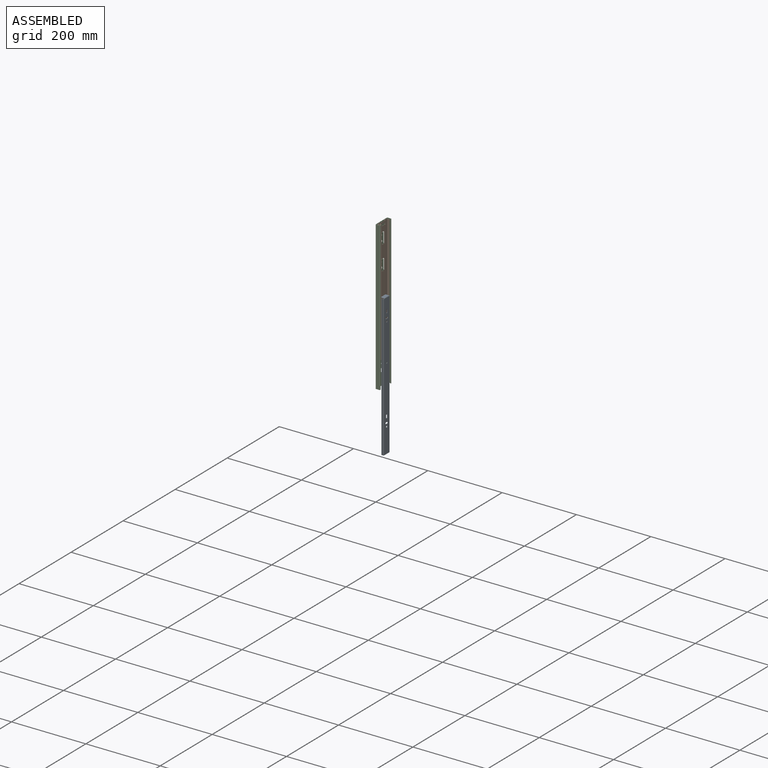
[diagram: assembled view]
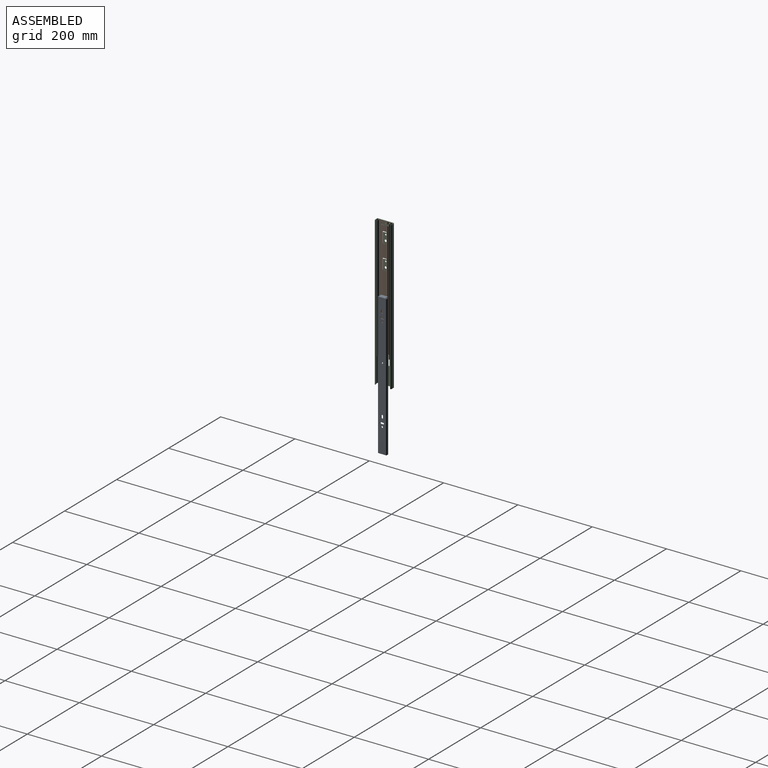
[diagram: assembled view, second angle]
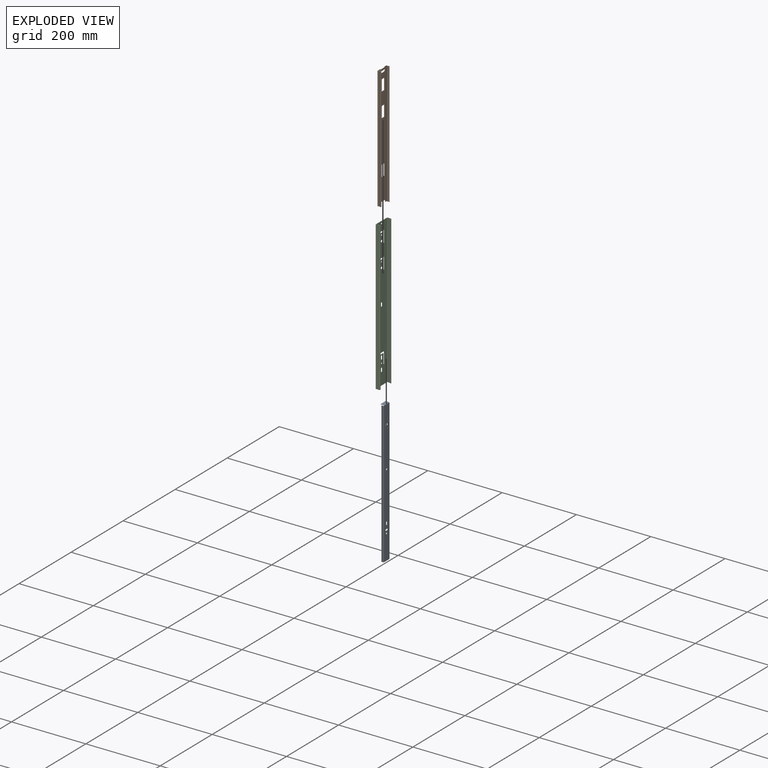
[diagram: exploded view]
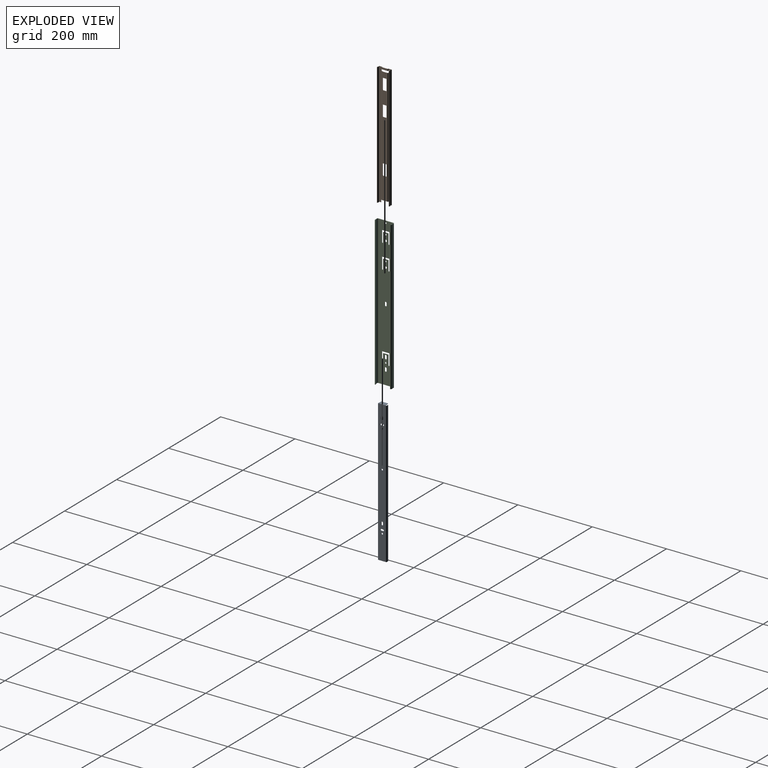
[diagram: exploded view, second angle]
ASSEMBLY  parts=3 mates=2
PART A: 69 faces, bbox 10.2x24x382.2 mm
  f0: plane 6x3mm, normal (0,0,1), area 7.1mm2, adj f3,f4,f5,f6,f7,f8,f9,f21
  f1: cylinder r=3mm len=380mm, axis (0,0,1), area 1237.2mm2, adj f2,f12,f13,f14
  f2: cylinder r=2mm len=380mm, axis (0,0,1), area 1552.5mm2, adj f1,f3,f13,f14
  f3: plane 380x20mm, normal (1,0,0), area 7362.6mm2, adj f0,f2,f4,f13,f14,f17,f50,f51
  f4: cylinder r=2mm len=380mm, axis (0,0,1), area 1552.5mm2, adj f0,f3,f5,f13
  f5: cylinder r=3mm len=380mm, axis (0,0,1), area 1237.2mm2, adj f0,f4,f6,f13
  f6: plane 380x1.16mm, normal (-1,0,0), area 438.8mm2, adj f0,f5,f7,f13
  f7: cylinder r=4mm len=380mm, axis (0,0,1), area 1395.9mm2, adj f0,f6,f8,f13
  f8: cylinder r=1mm len=380mm, axis (0,0,1), area 776.3mm2, adj f0,f7,f9,f13
  f9: plane 380x20mm, normal (-1,0,0), area 7432mm2, adj f0,f8,f10,f13,f14,f18,f31,f32
  f10: cylinder r=1mm len=380mm, axis (0,0,1), area 776.3mm2, adj f9,f11,f13,f14
  f11: cylinder r=4mm len=380mm, axis (0,0,1), area 1395.9mm2, adj f10,f12,f13,f14
  f12: plane 380x1.16mm, normal (-1,0,0), area 438.8mm2, adj f1,f11,f13,f14
  f13: plane 24x6mm, normal (0,0,-1), area 33mm2, adj f1,f2,f3,f4,f5,f6,f7,f8
  f14: plane 6x3mm, normal (0,0,1), area 7.1mm2, adj f1,f2,f3,f9,f10,f11,f12,f20
  f15: plane 17x0.5mm, normal (-1,0,0), area 8.5mm2, adj f19,f22,f23,f27
  f16: plane 18x7.5mm, normal (0,0,1), area 134.9mm2, adj f17,f25,f26,f27,f28,f29
  f17: cylinder r=2mm len=18mm, axis (0,-1,0), area 56.5mm2, adj f3,f16,f24,f30
  f18: cylinder r=1mm len=19mm, axis (0,-1,0), area 29.8mm2, adj f9,f19,f20,f21
  f19: plane 19x8mm, normal (0,0,-1), area 151.6mm2, adj f15,f18,f20,f21,f22,f23
  f20: plane 8.5x1.5mm, normal (0,1,0), area 4.5mm2, adj f14,f18,f19,f23,f29,f30
  f21: plane 8.5x1.5mm, normal (0,-1,0), area 4.5mm2, adj f0,f18,f19,f22,f24,f25
  f22: cylinder r=1mm len=1mm, axis (0,0,1), area 0.8mm2, adj f15,f19,f21,f26
  f23: cylinder r=1mm len=1mm, axis (0,0,-1), area 0.8mm2, adj f15,f19,f20,f28
  f24: torus R=1.5mm, axis (0,1,0), area 2.2mm2, adj f0,f17,f21,f25
  f25: cylinder r=0.5mm len=7mm, axis (1,0,0), area 5.5mm2, adj f16,f21,f24,f26
  f26: torus R=0.5mm, axis (0,0,-1), area 1mm2, adj f16,f22,f25,f27
  f27: cylinder r=0.5mm len=17mm, axis (0,-1,0), area 13.4mm2, adj f15,f16,f26,f28
  f28: torus R=0.5mm, axis (0,0,-1), area 1mm2, adj f16,f23,f27,f29
  f29: cylinder r=0.5mm len=7mm, axis (-1,0,0), area 5.5mm2, adj f16,f20,f28,f30
  f30: torus R=1.5mm, axis (0,1,0), area 2.2mm2, adj f14,f17,f20,f29
  f31: cylinder r=2mm len=4mm, axis (1,0,0), area 6.3mm2, adj f9,f67
  f32: cylinder r=2mm len=4mm, axis (1,0,0), area 3.1mm2, adj f9,f33,f35,f57
  f33: plane 5x0.5mm, normal (0,-1,0), area 2.5mm2, adj f9,f32,f34,f55
  f34: cylinder r=2mm len=4mm, axis (1,0,0), area 3.1mm2, adj f9,f33,f35,f54
  f35: plane 5x0.5mm, normal (0,1,0), area 2.5mm2, adj f9,f32,f34,f56
  f36: cylinder r=2mm len=4mm, axis (1,0,0), area 3.1mm2, adj f9,f37,f39,f51
  f37: plane 5x0.5mm, normal (0,0,1), area 2.5mm2, adj f9,f36,f38,f50
  f38: cylinder r=2mm len=4mm, axis (1,0,0), area 3.1mm2, adj f9,f37,f39,f52
  f39: plane 5x0.5mm, normal (0,0,-1), area 2.5mm2, adj f9,f36,f38,f53
  f40: cylinder r=2mm len=4mm, axis (1,0,0), area 6.3mm2, adj f9,f68
  f41: cylinder r=2mm len=4mm, axis (1,0,0), area 3.1mm2, adj f9,f42,f44,f61
  f42: plane 5x0.5mm, normal (0,-1,0), area 2.5mm2, adj f9,f41,f43,f59
  f43: cylinder r=2mm len=4mm, axis (1,0,0), area 3.1mm2, adj f9,f42,f44,f58
  f44: plane 5x0.5mm, normal (0,1,0), area 2.5mm2, adj f9,f41,f43,f60
  f45: cylinder r=2mm len=4mm, axis (1,0,0), area 3.1mm2, adj f9,f46,f48,f63
  f46: plane 5x0.5mm, normal (0,0,1), area 2.5mm2, adj f9,f45,f47,f62
  f47: cylinder r=2mm len=4mm, axis (1,0,0), area 3.1mm2, adj f9,f46,f48,f64
  f48: plane 5x0.5mm, normal (0,0,-1), area 2.5mm2, adj f9,f45,f47,f65
  f49: cylinder r=2mm len=4mm, axis (1,0,0), area 6.3mm2, adj f9,f66
  f50: cylinder r=0.5mm len=5mm, axis (0,-1,0), area 3.9mm2, adj f3,f37,f51,f52
  f51: torus R=2.5mm, axis (1,0,0), area 5.4mm2, adj f3,f36,f50,f53
  f52: torus R=2.5mm, axis (1,0,0), area 5.4mm2, adj f3,f38,f50,f53
  f53: cylinder r=0.5mm len=5mm, axis (0,1,0), area 3.9mm2, adj f3,f39,f51,f52
  f54: torus R=2.5mm, axis (1,0,0), area 5.4mm2, adj f3,f34,f55,f56
  f55: cylinder r=0.5mm len=5mm, axis (0,0,-1), area 3.9mm2, adj f3,f33,f54,f57
  f56: cylinder r=0.5mm len=5mm, axis (0,0,1), area 3.9mm2, adj f3,f35,f54,f57
  f57: torus R=2.5mm, axis (1,0,0), area 5.4mm2, adj f3,f32,f55,f56
  f58: torus R=2.5mm, axis (1,0,0), area 5.4mm2, adj f3,f43,f59,f60
  f59: cylinder r=0.5mm len=5mm, axis (0,0,-1), area 3.9mm2, adj f3,f42,f58,f61
  f60: cylinder r=0.5mm len=5mm, axis (0,0,1), area 3.9mm2, adj f3,f44,f58,f61
  f61: torus R=2.5mm, axis (1,0,0), area 5.4mm2, adj f3,f41,f59,f60
  f62: cylinder r=0.5mm len=5mm, axis (0,-1,0), area 3.9mm2, adj f3,f46,f63,f64
  f63: torus R=2.5mm, axis (1,0,0), area 5.4mm2, adj f3,f45,f62,f65
  f64: torus R=2.5mm, axis (1,0,0), area 5.4mm2, adj f3,f47,f62,f65
  f65: cylinder r=0.5mm len=5mm, axis (0,1,0), area 3.9mm2, adj f3,f48,f63,f64
  f66: torus R=2.5mm, axis (1,0,0), area 10.8mm2, adj f3,f49
  f67: torus R=2.5mm, axis (1,0,0), area 10.8mm2, adj f3,f31
  f68: torus R=2.5mm, axis (1,0,0), area 10.8mm2, adj f3,f40
PART B: 176 faces, bbox 9.2x35.3x330 mm
  f0: plane 5x0.7mm, normal (0,1,0), area 3.5mm2, adj f1,f14,f46,f79
  f1: cylinder r=1.3mm len=5mm, axis (0,0,1), area 10.2mm2, adj f0,f2,f46,f79
  f2: plane 15x5mm, normal (1,0,0), area 75mm2, adj f1,f3,f46,f79
  f3: cylinder r=1.3mm len=5mm, axis (0,0,1), area 10.2mm2, adj f2,f4,f46,f79
  f4: plane 5x0.7mm, normal (0,-1,0), area 3.5mm2, adj f3,f20,f46,f79
  f5: cylinder r=0.5mm len=4mm, axis (0,0,1), area 3.1mm2, adj f6,f29,f137,f152
  f6: plane 4x1mm, normal (0,1,0), area 4mm2, adj f5,f7,f136,f150
  f7: cylinder r=0.5mm len=4mm, axis (0,0,1), area 3.1mm2, adj f6,f8,f135,f148
  f8: plane 15x4mm, normal (-1,0,0), area 60mm2, adj f7,f9,f134,f146
  f9: cylinder r=0.5mm len=4mm, axis (0,0,1), area 3.1mm2, adj f8,f10,f133,f144
  f10: plane 4x1mm, normal (0,-1,0), area 4mm2, adj f9,f11,f132,f145
  f11: cylinder r=0.5mm len=4mm, axis (0,0,1), area 3.1mm2, adj f10,f37,f131,f147
  f12: plane 8.01x6mm, normal (0,0,-1), area 4.6mm2, adj f20,f21,f22,f23,f66,f103,f105,f107
  f13: cylinder r=3.8mm len=330mm, axis (0,0,1), area 1971.6mm2, adj f14,f44,f45,f46
  f14: plane 330x7.66mm, normal (1,0,0), area 2509.1mm2, adj f0,f13,f15,f45,f46,f64,f65,f67
  f15: plane 313x0.7mm, normal (0,1,0), area 219.1mm2, adj f14,f16,f64,f83
  f16: cylinder r=1.3mm len=313mm, axis (0,0,1), area 639.2mm2, adj f15,f17,f64,f83
  f17: plane 313x15mm, normal (1,0,0), area 3797.6mm2, adj f16,f18,f47,f48,f49,f50,f51,f52
  f18: cylinder r=1.3mm len=313mm, axis (0,0,1), area 639.2mm2, adj f17,f19,f64,f83
  f19: plane 313x0.7mm, normal (0,-1,0), area 219.1mm2, adj f18,f20,f64,f83
  f20: plane 330x7.66mm, normal (1,0,0), area 2509.1mm2, adj f4,f12,f19,f21,f46,f63,f64,f66
  f21: cylinder r=3.8mm len=330mm, axis (0,0,1), area 1971.6mm2, adj f12,f20,f22,f46
  f22: cylinder r=1.2mm len=330mm, axis (0,0,1), area 965.6mm2, adj f12,f21,f23,f46
  f23: plane 330x0.8mm, normal (-0.1,0.99,0), area 263.9mm2, adj f12,f22,f24,f46,f108,f143
  f24: cylinder r=2mm len=329mm, axis (0,0,1), area 1604.5mm2, adj f23,f25,f108,f143
  f25: cylinder r=3mm len=329mm, axis (0,0,1), area 1673.2mm2, adj f24,f26,f107,f142
  f26: cylinder r=0.5mm len=329mm, axis (0,0,1), area 152.6mm2, adj f25,f27,f106,f141
  f27: plane 329x0.24mm, normal (0,-1,0), area 78.2mm2, adj f26,f28,f105,f140
  f28: cylinder r=0.5mm len=329mm, axis (0,0,1), area 258.4mm2, adj f27,f29,f104,f139
  f29: plane 329x8.5mm, normal (-1,0,0), area 2765.8mm2, adj f5,f28,f30,f100,f101,f102,f103,f138
  f30: cylinder r=0.5mm len=312mm, axis (0,0,1), area 245mm2, adj f29,f31,f99,f164
  f31: plane 312x1mm, normal (0,1,0), area 312mm2, adj f30,f32,f98,f166
  f32: cylinder r=0.5mm len=312mm, axis (0,0,1), area 245mm2, adj f31,f33,f97,f167
  f33: plane 312x15mm, normal (-1,0,0), area 3662.8mm2, adj f32,f34,f96,f109,f110,f111,f112,f113
  f34: cylinder r=0.5mm len=312mm, axis (0,0,1), area 245mm2, adj f33,f35,f95,f163
  f35: plane 312x1mm, normal (0,-1,0), area 312mm2, adj f34,f36,f94,f161
  f36: cylinder r=0.5mm len=312mm, axis (0,0,1), area 245mm2, adj f35,f37,f93,f159
  f37: plane 329x8.5mm, normal (-1,0,0), area 2765.8mm2, adj f11,f36,f38,f89,f90,f91,f92,f130
  f38: cylinder r=0.5mm len=329mm, axis (0,0,1), area 258.4mm2, adj f37,f39,f88,f129
  f39: plane 329x0.24mm, normal (0,1,0), area 78.2mm2, adj f38,f40,f87,f128
  f40: cylinder r=0.5mm len=329mm, axis (0,0,1), area 152.6mm2, adj f39,f41,f86,f127
  f41: cylinder r=3mm len=329mm, axis (0,0,1), area 1673.2mm2, adj f40,f42,f85,f126
  f42: cylinder r=2mm len=329mm, axis (0,0,1), area 1604.5mm2, adj f41,f43,f84,f125
  f43: plane 330x0.8mm, normal (-0.1,-0.99,0), area 263.9mm2, adj f42,f44,f45,f46,f84,f125
  f44: cylinder r=1.2mm len=330mm, axis (0,0,1), area 965.6mm2, adj f13,f43,f45,f46
  f45: plane 8.01x6mm, normal (0,0,-1), area 4.6mm2, adj f13,f14,f43,f44,f67,f84,f85,f87
  f46: plane 34x8.01mm, normal (0,0,1), area 16.6mm2, adj f0,f1,f2,f3,f4,f13,f14,f20
  f47: cylinder r=1mm len=1mm, axis (1,0,0), area 0.5mm2, adj f17,f48,f54,f124
  f48: plane 28x0.3mm, normal (0,1,0), area 8.4mm2, adj f17,f47,f49,f122
  f49: cylinder r=1mm len=1mm, axis (1,0,0), area 0.5mm2, adj f17,f48,f50,f120
  f50: plane 8x0.3mm, normal (0,0,-1), area 2.4mm2, adj f17,f49,f51,f118
  f51: cylinder r=1mm len=1mm, axis (1,0,0), area 0.5mm2, adj f17,f50,f52,f117
  f52: plane 28x0.3mm, normal (0,-1,0), area 8.4mm2, adj f17,f51,f53,f119
  f53: cylinder r=1mm len=1mm, axis (1,0,0), area 0.5mm2, adj f17,f52,f54,f121
  f54: plane 8x0.3mm, normal (0,0,1), area 2.4mm2, adj f17,f47,f53,f123
  f55: cylinder r=1mm len=1mm, axis (1,0,0), area 0.5mm2, adj f17,f56,f62,f171
  f56: plane 28x0.3mm, normal (0,1,0), area 8.4mm2, adj f17,f55,f57,f169
  f57: cylinder r=1mm len=1mm, axis (1,0,0), area 0.5mm2, adj f17,f56,f58,f168
  f58: plane 8x0.3mm, normal (0,0,-1), area 2.4mm2, adj f17,f57,f59,f170
  f59: cylinder r=1mm len=1mm, axis (1,0,0), area 0.5mm2, adj f17,f58,f60,f172
  f60: plane 28x0.3mm, normal (0,-1,0), area 8.4mm2, adj f17,f59,f61,f174
  f61: cylinder r=1mm len=1mm, axis (1,0,0), area 0.5mm2, adj f17,f60,f62,f175
  f62: plane 8x0.3mm, normal (0,0,1), area 2.4mm2, adj f17,f55,f61,f173
  f63: cylinder r=2mm len=2mm, axis (1,0,0), area 0.9mm2, adj f20,f64,f66,f101
  f64: plane 18x2.3mm, normal (0,0,-1), area 6.3mm2, adj f14,f15,f16,f17,f18,f19,f20,f63
  f65: cylinder r=2mm len=2mm, axis (1,0,0), area 0.9mm2, adj f14,f64,f67,f91
  f66: plane 5x0.3mm, normal (0,1,0), area 1.5mm2, adj f12,f20,f63,f102
  f67: plane 5x0.3mm, normal (0,-1,0), area 1.5mm2, adj f14,f45,f65,f90
  f68: cylinder r=1mm len=1mm, axis (1,0,0), area 0.5mm2, adj f17,f69,f75,f116
  f69: plane 28x0.3mm, normal (0,1,0), area 8.4mm2, adj f17,f68,f70,f114
  f70: cylinder r=1mm len=1mm, axis (1,0,0), area 0.5mm2, adj f17,f69,f71,f112
  f71: plane 8x0.3mm, normal (0,0,-1), area 2.4mm2, adj f17,f70,f72,f110
  f72: cylinder r=1mm len=1mm, axis (1,0,0), area 0.5mm2, adj f17,f71,f73,f109
  f73: plane 28x0.3mm, normal (0,-1,0), area 8.4mm2, adj f17,f72,f74,f111
  f74: cylinder r=1mm len=1mm, axis (1,0,0), area 0.5mm2, adj f17,f73,f75,f113
  f75: plane 8x0.3mm, normal (0,0,1), area 2.4mm2, adj f17,f68,f74,f115
  f76: cylinder r=1mm len=1mm, axis (1,0,0), area 0.5mm2, adj f20,f77,f83,f160
  f77: plane 3x0.3mm, normal (0,1,0), area 0.9mm2, adj f20,f76,f78,f158
  f78: cylinder r=1mm len=1mm, axis (1,0,0), area 0.5mm2, adj f20,f77,f79,f156
  f79: plane 18x2.3mm, normal (0,0,-1), area 6.3mm2, adj f0,f1,f2,f3,f4,f14,f20,f78
  f80: cylinder r=1mm len=1mm, axis (1,0,0), area 0.5mm2, adj f14,f79,f81,f151
  f81: plane 3x0.3mm, normal (0,-1,0), area 0.9mm2, adj f14,f80,f82,f153
  f82: cylinder r=1mm len=1mm, axis (1,0,0), area 0.5mm2, adj f14,f81,f83,f155
  f83: plane 18x2.3mm, normal (0,0,1), area 6.3mm2, adj f14,f15,f16,f17,f18,f19,f20,f76
  f84: torus R=1.5mm, axis (0,0,1), area 3.5mm2, adj f42,f43,f45,f85
  f85: torus R=3.5mm, axis (0,0,1), area 4.2mm2, adj f41,f45,f84,f86
  f86: sphere r=0.5mm, area 0.2mm2, adj f40,f85,f87
  f87: cylinder r=0.5mm len=0.5mm, axis (1,0,0), area 0.2mm2, adj f39,f45,f86,f88
  f88: sphere r=0.5mm, area 0.4mm2, adj f38,f87,f89
  f89: cylinder r=0.5mm len=6mm, axis (0,1,0), area 4.6mm2, adj f37,f45,f88,f90
  f90: cylinder r=0.5mm len=5mm, axis (0,0,1), area 3.8mm2, adj f37,f67,f89,f91
  f91: torus R=2.5mm, axis (1,0,0), area 2.7mm2, adj f37,f65,f90,f92
  f92: cylinder r=0.5mm len=0.5mm, axis (0,-1,0), area 0.4mm2, adj f37,f64,f91,f93
  f93: sphere r=0.5mm, area 0.4mm2, adj f36,f92,f94
  f94: cylinder r=0.5mm len=1mm, axis (1,0,0), area 0.8mm2, adj f35,f64,f93,f95
  f95: torus R=1mm, axis (0,0,1), area 0.8mm2, adj f34,f64,f94,f96
  f96: cylinder r=0.5mm len=15mm, axis (0,-1,0), area 11.8mm2, adj f33,f64,f95,f97
  f97: torus R=1mm, axis (0,0,1), area 0.8mm2, adj f32,f64,f96,f98
  f98: cylinder r=0.5mm len=1mm, axis (-1,0,0), area 0.8mm2, adj f31,f64,f97,f99
  f99: sphere r=0.5mm, area 0.4mm2, adj f30,f98,f100
  f100: cylinder r=0.5mm len=0.5mm, axis (0,-1,0), area 0.4mm2, adj f29,f64,f99,f101
  f101: torus R=2.5mm, axis (-1,0,0), area 2.7mm2, adj f29,f63,f100,f102
  f102: cylinder r=0.5mm len=5mm, axis (0,0,-1), area 3.8mm2, adj f29,f66,f101,f103
  f103: cylinder r=0.5mm len=6mm, axis (0,1,0), area 4.6mm2, adj f12,f29,f102,f104
  f104: sphere r=0.5mm, area 0.4mm2, adj f28,f103,f105
  f105: cylinder r=0.5mm len=0.5mm, axis (-1,0,0), area 0.2mm2, adj f12,f27,f104,f106
  f106: sphere r=0.5mm, area 0.2mm2, adj f26,f105,f107
  f107: torus R=3.5mm, axis (0,0,1), area 4.2mm2, adj f12,f25,f106,f108
  f108: torus R=1.5mm, axis (0,0,1), area 3.5mm2, adj f12,f23,f24,f107
  f109: torus R=1.5mm, axis (1,0,0), area 1.5mm2, adj f33,f72,f110,f111
  f110: cylinder r=0.5mm len=8mm, axis (0,-1,0), area 6.3mm2, adj f33,f71,f109,f112
  f111: cylinder r=0.5mm len=28mm, axis (0,0,1), area 22mm2, adj f33,f73,f109,f113
  f112: torus R=1.5mm, axis (1,0,0), area 1.5mm2, adj f33,f70,f110,f114
  f113: torus R=1.5mm, axis (1,0,0), area 1.5mm2, adj f33,f74,f111,f115
  f114: cylinder r=0.5mm len=28mm, axis (0,0,-1), area 22mm2, adj f33,f69,f112,f116
  f115: cylinder r=0.5mm len=8mm, axis (0,1,0), area 6.3mm2, adj f33,f75,f113,f116
  f116: torus R=1.5mm, axis (1,0,0), area 1.5mm2, adj f33,f68,f114,f115
  f117: torus R=1.5mm, axis (1,0,0), area 1.5mm2, adj f33,f51,f118,f119
  f118: cylinder r=0.5mm len=8mm, axis (0,-1,0), area 6.3mm2, adj f33,f50,f117,f120
  f119: cylinder r=0.5mm len=28mm, axis (0,0,1), area 22mm2, adj f33,f52,f117,f121
  f120: torus R=1.5mm, axis (1,0,0), area 1.5mm2, adj f33,f49,f118,f122
  f121: torus R=1.5mm, axis (1,0,0), area 1.5mm2, adj f33,f53,f119,f123
  f122: cylinder r=0.5mm len=28mm, axis (0,0,-1), area 22mm2, adj f33,f48,f120,f124
  f123: cylinder r=0.5mm len=8mm, axis (0,1,0), area 6.3mm2, adj f33,f54,f121,f124
  f124: torus R=1.5mm, axis (1,0,0), area 1.5mm2, adj f33,f47,f122,f123
  f125: torus R=1.5mm, axis (0,0,1), area 3.5mm2, adj f42,f43,f46,f126
  f126: torus R=3.5mm, axis (0,0,1), area 4.2mm2, adj f41,f46,f125,f127
  f127: sphere r=0.5mm, area 0.2mm2, adj f40,f126,f128
  f128: cylinder r=0.5mm len=0.5mm, axis (-1,0,0), area 0.2mm2, adj f39,f46,f127,f129
  f129: sphere r=0.5mm, area 0.4mm2, adj f38,f128,f130
  f130: cylinder r=0.5mm len=8.5mm, axis (0,-1,0), area 6.7mm2, adj f37,f46,f129,f131
  f131: sphere r=0.5mm, area 0.4mm2, adj f11,f130,f132
  f132: cylinder r=0.5mm len=1mm, axis (1,0,0), area 0.8mm2, adj f10,f46,f131,f133
  f133: torus R=1mm, axis (0,0,1), area 0.8mm2, adj f9,f46,f132,f134
  f134: cylinder r=0.5mm len=15mm, axis (0,-1,0), area 11.8mm2, adj f8,f46,f133,f135
  f135: torus R=1mm, axis (0,0,1), area 0.8mm2, adj f7,f46,f134,f136
  f136: cylinder r=0.5mm len=1mm, axis (-1,0,0), area 0.8mm2, adj f6,f46,f135,f137
  f137: sphere r=0.5mm, area 0.4mm2, adj f5,f136,f138
  f138: cylinder r=0.5mm len=8.5mm, axis (0,-1,0), area 6.7mm2, adj f29,f46,f137,f139
  f139: sphere r=0.5mm, area 0.4mm2, adj f28,f138,f140
  f140: cylinder r=0.5mm len=0.5mm, axis (1,0,0), area 0.2mm2, adj f27,f46,f139,f141
  f141: sphere r=0.5mm, area 0.2mm2, adj f26,f140,f142
  f142: torus R=3.5mm, axis (0,0,1), area 4.2mm2, adj f25,f46,f141,f143
  f143: torus R=1.5mm, axis (0,0,1), area 3.5mm2, adj f23,f24,f46,f142
  f144: torus R=1mm, axis (0,0,1), area 0.8mm2, adj f9,f79,f145,f146
  f145: cylinder r=0.5mm len=1mm, axis (1,0,0), area 0.8mm2, adj f10,f79,f144,f147
  f146: cylinder r=0.5mm len=15mm, axis (0,-1,0), area 11.8mm2, adj f8,f79,f144,f148
  f147: sphere r=0.5mm, area 0.4mm2, adj f11,f145,f149
  f148: torus R=1mm, axis (0,0,1), area 0.8mm2, adj f7,f79,f146,f150
  f149: cylinder r=0.5mm len=0.5mm, axis (0,-1,0), area 0.4mm2, adj f37,f79,f147,f151
  f150: cylinder r=0.5mm len=1mm, axis (-1,0,0), area 0.8mm2, adj f6,f79,f148,f152
  f151: torus R=1.5mm, axis (1,0,0), area 1.5mm2, adj f37,f80,f149,f153
  f152: sphere r=0.5mm, area 0.4mm2, adj f5,f150,f154
  f153: cylinder r=0.5mm len=3mm, axis (0,0,1), area 2.4mm2, adj f37,f81,f151,f155
  f154: cylinder r=0.5mm len=0.5mm, axis (0,-1,0), area 0.4mm2, adj f29,f79,f152,f156
  f155: torus R=1.5mm, axis (1,0,0), area 1.5mm2, adj f37,f82,f153,f157
  f156: torus R=1.5mm, axis (-1,0,0), area 1.5mm2, adj f29,f78,f154,f158
  f157: cylinder r=0.5mm len=0.5mm, axis (0,1,0), area 0.4mm2, adj f37,f83,f155,f159
  f158: cylinder r=0.5mm len=3mm, axis (0,0,-1), area 2.4mm2, adj f29,f77,f156,f160
  f159: sphere r=0.5mm, area 0.4mm2, adj f36,f157,f161
  f160: torus R=1.5mm, axis (-1,0,0), area 1.5mm2, adj f29,f76,f158,f162
  f161: cylinder r=0.5mm len=1mm, axis (-1,0,0), area 0.8mm2, adj f35,f83,f159,f163
  f162: cylinder r=0.5mm len=0.5mm, axis (0,1,0), area 0.4mm2, adj f29,f83,f160,f164
  f163: torus R=1mm, axis (0,0,-1), area 0.8mm2, adj f34,f83,f161,f165
  f164: sphere r=0.5mm, area 0.4mm2, adj f30,f162,f166
  f165: cylinder r=0.5mm len=15mm, axis (0,1,0), area 11.8mm2, adj f33,f83,f163,f167
  f166: cylinder r=0.5mm len=1mm, axis (1,0,0), area 0.8mm2, adj f31,f83,f164,f167
  f167: torus R=1mm, axis (0,0,-1), area 0.8mm2, adj f32,f83,f165,f166
  f168: torus R=1.5mm, axis (1,0,0), area 1.5mm2, adj f33,f57,f169,f170
  f169: cylinder r=0.5mm len=28mm, axis (0,0,-1), area 22mm2, adj f33,f56,f168,f171
  f170: cylinder r=0.5mm len=8mm, axis (0,-1,0), area 6.3mm2, adj f33,f58,f168,f172
  f171: torus R=1.5mm, axis (1,0,0), area 1.5mm2, adj f33,f55,f169,f173
  f172: torus R=1.5mm, axis (1,0,0), area 1.5mm2, adj f33,f59,f170,f174
  f173: cylinder r=0.5mm len=8mm, axis (0,1,0), area 6.3mm2, adj f33,f62,f171,f175
  f174: cylinder r=0.5mm len=28mm, axis (0,0,1), area 22mm2, adj f33,f60,f172,f175
  f175: torus R=1.5mm, axis (1,0,0), area 1.5mm2, adj f33,f61,f173,f174
PART C: 148 faces, bbox 12.3x45.3x400 mm
  f0: plane 400x1mm, normal (0,-1,0), area 400mm2, adj f1,f19,f20,f21,f84,f93
  f1: plane 400x1mm, normal (-1,0,0), area 400mm2, adj f0,f2,f20,f21
  f2: cylinder r=1mm len=400mm, axis (0,0,1), area 628.3mm2, adj f1,f3,f20,f21
  f3: plane 400x8mm, normal (0,-1,0), area 3200mm2, adj f2,f4,f20,f21
  f4: cylinder r=1mm len=400mm, axis (0,0,1), area 628.3mm2, adj f3,f5,f20,f21
  f5: plane 400x41mm, normal (1,0,0), area 15415.1mm2, adj f4,f6,f20,f21,f22,f23,f24,f25
  f6: cylinder r=1mm len=400mm, axis (0,0,1), area 628.3mm2, adj f5,f7,f20,f21
  f7: plane 400x8mm, normal (0,1,0), area 3200mm2, adj f6,f8,f20,f21
  f8: cylinder r=1mm len=400mm, axis (0,0,1), area 628.3mm2, adj f7,f9,f20,f21
  f9: plane 400x1mm, normal (-1,0,0), area 400mm2, adj f8,f10,f20,f21
  f10: plane 400x1mm, normal (0,1,0), area 400mm2, adj f9,f11,f20,f21,f76,f85
  f11: plane 399.6x1mm, normal (1,0,0), area 399.6mm2, adj f10,f12,f76,f85
  f12: cylinder r=2mm len=399.6mm, axis (0,0,1), area 1255.4mm2, adj f11,f13,f77,f86
  f13: plane 399.6x8mm, normal (0,-1,0), area 3196.8mm2, adj f12,f14,f78,f87
  f14: cylinder r=2mm len=399.6mm, axis (0,0,1), area 1255.4mm2, adj f13,f15,f79,f88
  f15: plane 399.6x41mm, normal (-1,0,0), area 15270.7mm2, adj f14,f16,f80,f89,f94,f95,f96,f97
  f16: cylinder r=2mm len=399.6mm, axis (0,0,1), area 1255.4mm2, adj f15,f17,f81,f90
  f17: plane 399.6x8mm, normal (0,1,0), area 3196.8mm2, adj f16,f18,f82,f91
  f18: cylinder r=2mm len=399.6mm, axis (0,0,1), area 1255.4mm2, adj f17,f19,f83,f92
  f19: plane 399.6x1mm, normal (1,0,0), area 399.6mm2, adj f0,f18,f84,f93
  f20: plane 44.6x11.6mm, normal (0,0,-1), area 54.2mm2, adj f0,f1,f2,f3,f4,f5,f6,f7
  f21: plane 44.6x11.6mm, normal (0,0,1), area 54.2mm2, adj f0,f1,f2,f3,f4,f5,f6,f7
  f22: cylinder r=1.5mm len=3mm, axis (1,0,0), area 3.8mm2, adj f5,f23,f33,f105
  f23: plane 25x0.8mm, normal (0,1,0), area 20mm2, adj f5,f22,f24,f103
  f24: cylinder r=1mm len=1mm, axis (1,0,0), area 1.3mm2, adj f5,f23,f25,f101
  f25: plane 12x0.8mm, normal (0,0,1), area 9.6mm2, adj f5,f24,f26,f99
  f26: cylinder r=1mm len=1mm, axis (1,0,0), area 1.3mm2, adj f5,f25,f27,f98
  f27: plane 25x0.8mm, normal (0,-1,0), area 20mm2, adj f5,f26,f28,f100
  f28: cylinder r=1.5mm len=3mm, axis (1,0,0), area 3.8mm2, adj f5,f27,f29,f102
  f29: plane 29x0.8mm, normal (0,1,0), area 23.2mm2, adj f5,f28,f30,f104
  f30: cylinder r=1mm len=1mm, axis (1,0,0), area 1.3mm2, adj f5,f29,f31,f106
  f31: plane 18x0.8mm, normal (0,0,-1), area 14.4mm2, adj f5,f30,f32,f108
  f32: cylinder r=1mm len=1mm, axis (1,0,0), area 1.3mm2, adj f5,f31,f33,f109
  f33: plane 29x0.8mm, normal (0,-1,0), area 23.2mm2, adj f5,f22,f32,f107
  f34: cylinder r=1.5mm len=3mm, axis (1,0,0), area 3.8mm2, adj f5,f35,f45,f110
  f35: plane 25x0.8mm, normal (0,1,0), area 20mm2, adj f5,f34,f36,f112
  f36: cylinder r=1mm len=1mm, axis (1,0,0), area 1.3mm2, adj f5,f35,f37,f114
  f37: plane 12x0.8mm, normal (0,0,1), area 9.6mm2, adj f5,f36,f38,f116
  f38: cylinder r=1mm len=1mm, axis (1,0,0), area 1.3mm2, adj f5,f37,f39,f118
  f39: plane 25x0.8mm, normal (0,-1,0), area 20mm2, adj f5,f38,f40,f120
  f40: cylinder r=1.5mm len=3mm, axis (1,0,0), area 3.8mm2, adj f5,f39,f41,f121
  f41: plane 29x0.8mm, normal (0,1,0), area 23.2mm2, adj f5,f40,f42,f119
  f42: cylinder r=1mm len=1mm, axis (1,0,0), area 1.3mm2, adj f5,f41,f43,f117
  f43: plane 18x0.8mm, normal (0,0,-1), area 14.4mm2, adj f5,f42,f44,f115
  f44: cylinder r=1mm len=1mm, axis (1,0,0), area 1.3mm2, adj f5,f43,f45,f113
  f45: plane 29x0.8mm, normal (0,-1,0), area 23.2mm2, adj f5,f34,f44,f111
  f46: cylinder r=1.5mm len=3mm, axis (1,0,0), area 3.8mm2, adj f5,f47,f57,f132
  f47: plane 25x0.8mm, normal (0,1,0), area 20mm2, adj f5,f46,f48,f133
  f48: cylinder r=1mm len=1mm, axis (1,0,0), area 1.3mm2, adj f5,f47,f49,f131
  f49: plane 12x0.8mm, normal (0,0,1), area 9.6mm2, adj f5,f48,f50,f129
  f50: cylinder r=1mm len=1mm, axis (1,0,0), area 1.3mm2, adj f5,f49,f51,f127
  f51: plane 25x0.8mm, normal (0,-1,0), area 20mm2, adj f5,f50,f52,f125
  f52: cylinder r=1.5mm len=3mm, axis (1,0,0), area 3.8mm2, adj f5,f51,f53,f123
  f53: plane 29x0.8mm, normal (0,1,0), area 23.2mm2, adj f5,f52,f54,f122
  f54: cylinder r=1mm len=1mm, axis (1,0,0), area 1.3mm2, adj f5,f53,f55,f124
  f55: plane 18x0.8mm, normal (0,0,-1), area 14.4mm2, adj f5,f54,f56,f126
  f56: cylinder r=1mm len=1mm, axis (1,0,0), area 1.3mm2, adj f5,f55,f57,f128
  f57: plane 29x0.8mm, normal (0,-1,0), area 23.2mm2, adj f5,f46,f56,f130
  f58: cylinder r=2mm len=4mm, axis (1,0,0), area 10.1mm2, adj f5,f144
  f59: cylinder r=3mm len=6mm, axis (1,0,0), area 15.1mm2, adj f5,f145
  f60: cylinder r=2mm len=4mm, axis (1,0,0), area 10.1mm2, adj f5,f146
  f61: cylinder r=3mm len=6mm, axis (1,0,0), area 15.1mm2, adj f5,f147
  f62: cylinder r=2mm len=4mm, axis (1,0,0), area 10.1mm2, adj f5,f138
  f63: cylinder r=2.5mm len=5mm, axis (1,0,0), area 6.3mm2, adj f5,f64,f66,f136
  f64: plane 6x0.8mm, normal (0,-1,0), area 4.8mm2, adj f5,f63,f65,f137
  f65: cylinder r=2.5mm len=5mm, axis (1,0,0), area 6.3mm2, adj f5,f64,f66,f135
  f66: plane 6x0.8mm, normal (0,1,0), area 4.8mm2, adj f5,f63,f65,f134
  f67: cylinder r=2.5mm len=5mm, axis (1,0,0), area 6.3mm2, adj f5,f68,f70,f141
  f68: plane 6x0.8mm, normal (0,-1,0), area 4.8mm2, adj f5,f67,f69,f142
  f69: cylinder r=2.5mm len=5mm, axis (1,0,0), area 6.3mm2, adj f5,f68,f70,f140
  f70: plane 6x0.8mm, normal (0,1,0), area 4.8mm2, adj f5,f67,f69,f139
  f71: cylinder r=2.5mm len=5mm, axis (1,0,0), area 6.3mm2, adj f5,f72,f74,f96
  f72: plane 6x0.8mm, normal (0,-1,0), area 4.8mm2, adj f5,f71,f73,f97
  f73: cylinder r=2.5mm len=5mm, axis (1,0,0), area 6.3mm2, adj f5,f72,f74,f95
  f74: plane 6x0.8mm, normal (0,1,0), area 4.8mm2, adj f5,f71,f73,f94
  f75: cylinder r=2mm len=4mm, axis (1,0,0), area 10.1mm2, adj f5,f143
  f76: cylinder r=0.2mm len=1mm, axis (0,1,0), area 0.3mm2, adj f10,f11,f20,f77
  f77: torus R=1.8mm, axis (0,0,-1), area 1mm2, adj f12,f20,f76,f78
  f78: cylinder r=0.2mm len=8mm, axis (1,0,0), area 2.5mm2, adj f13,f20,f77,f79
  f79: torus R=1.8mm, axis (0,0,-1), area 1mm2, adj f14,f20,f78,f80
  f80: cylinder r=0.2mm len=41mm, axis (0,-1,0), area 12.9mm2, adj f15,f20,f79,f81
  f81: torus R=1.8mm, axis (0,0,-1), area 1mm2, adj f16,f20,f80,f82
  f82: cylinder r=0.2mm len=8mm, axis (-1,0,0), area 2.5mm2, adj f17,f20,f81,f83
  f83: torus R=1.8mm, axis (0,0,-1), area 1mm2, adj f18,f20,f82,f84
  f84: cylinder r=0.2mm len=1mm, axis (0,1,0), area 0.3mm2, adj f0,f19,f20,f83
  f85: cylinder r=0.2mm len=1mm, axis (0,-1,0), area 0.3mm2, adj f10,f11,f21,f86
  f86: torus R=1.8mm, axis (0,0,-1), area 1mm2, adj f12,f21,f85,f87
  f87: cylinder r=0.2mm len=8mm, axis (-1,0,0), area 2.5mm2, adj f13,f21,f86,f88
  f88: torus R=1.8mm, axis (0,0,-1), area 1mm2, adj f14,f21,f87,f89
  f89: cylinder r=0.2mm len=41mm, axis (0,1,0), area 12.9mm2, adj f15,f21,f88,f90
  f90: torus R=1.8mm, axis (0,0,-1), area 1mm2, adj f16,f21,f89,f91
  f91: cylinder r=0.2mm len=8mm, axis (1,0,0), area 2.5mm2, adj f17,f21,f90,f92
  f92: torus R=1.8mm, axis (0,0,-1), area 1mm2, adj f18,f21,f91,f93
  f93: cylinder r=0.2mm len=1mm, axis (0,-1,0), area 0.3mm2, adj f0,f19,f21,f92
  f94: cylinder r=0.2mm len=6mm, axis (0,0,1), area 1.9mm2, adj f15,f74,f95,f96
  f95: torus R=2.7mm, axis (-1,0,0), area 2.5mm2, adj f15,f73,f94,f97
  f96: torus R=2.7mm, axis (-1,0,0), area 2.5mm2, adj f15,f71,f94,f97
  f97: cylinder r=0.2mm len=6mm, axis (0,0,-1), area 1.9mm2, adj f15,f72,f95,f96
  f98: torus R=0.8mm, axis (-1,0,0), area 0.5mm2, adj f15,f26,f99,f100
  f99: cylinder r=0.2mm len=12mm, axis (0,-1,0), area 3.8mm2, adj f15,f25,f98,f101
  f100: cylinder r=0.2mm len=25mm, axis (0,0,-1), area 7.9mm2, adj f15,f27,f98,f102
  f101: torus R=0.8mm, axis (-1,0,0), area 0.5mm2, adj f15,f24,f99,f103
  f102: torus R=1.7mm, axis (-1,0,0), area 1.6mm2, adj f15,f28,f100,f104
  f103: cylinder r=0.2mm len=25mm, axis (0,0,1), area 7.9mm2, adj f15,f23,f101,f105
  f104: cylinder r=0.2mm len=29mm, axis (0,0,1), area 9.1mm2, adj f15,f29,f102,f106
  f105: torus R=1.7mm, axis (-1,0,0), area 1.6mm2, adj f15,f22,f103,f107
  f106: torus R=1.2mm, axis (-1,0,0), area 0.5mm2, adj f15,f30,f104,f108
  f107: cylinder r=0.2mm len=29mm, axis (0,0,-1), area 9.1mm2, adj f15,f33,f105,f109
  f108: cylinder r=0.2mm len=18mm, axis (0,1,0), area 5.7mm2, adj f15,f31,f106,f109
  f109: torus R=1.2mm, axis (-1,0,0), area 0.5mm2, adj f15,f32,f107,f108
  f110: torus R=1.7mm, axis (-1,0,0), area 1.6mm2, adj f15,f34,f111,f112
  f111: cylinder r=0.2mm len=29mm, axis (0,0,-1), area 9.1mm2, adj f15,f45,f110,f113
  f112: cylinder r=0.2mm len=25mm, axis (0,0,1), area 7.9mm2, adj f15,f35,f110,f114
  f113: torus R=1.2mm, axis (-1,0,0), area 0.5mm2, adj f15,f44,f111,f115
  f114: torus R=0.8mm, axis (-1,0,0), area 0.5mm2, adj f15,f36,f112,f116
  f115: cylinder r=0.2mm len=18mm, axis (0,1,0), area 5.7mm2, adj f15,f43,f113,f117
  f116: cylinder r=0.2mm len=12mm, axis (0,-1,0), area 3.8mm2, adj f15,f37,f114,f118
  f117: torus R=1.2mm, axis (-1,0,0), area 0.5mm2, adj f15,f42,f115,f119
  f118: torus R=0.8mm, axis (-1,0,0), area 0.5mm2, adj f15,f38,f116,f120
  f119: cylinder r=0.2mm len=29mm, axis (0,0,1), area 9.1mm2, adj f15,f41,f117,f121
  f120: cylinder r=0.2mm len=25mm, axis (0,0,-1), area 7.9mm2, adj f15,f39,f118,f121
  f121: torus R=1.7mm, axis (-1,0,0), area 1.6mm2, adj f15,f40,f119,f120
  f122: cylinder r=0.2mm len=29mm, axis (0,0,1), area 9.1mm2, adj f15,f53,f123,f124
  f123: torus R=1.7mm, axis (-1,0,0), area 1.6mm2, adj f15,f52,f122,f125
  f124: torus R=1.2mm, axis (-1,0,0), area 0.5mm2, adj f15,f54,f122,f126
  f125: cylinder r=0.2mm len=25mm, axis (0,0,-1), area 7.9mm2, adj f15,f51,f123,f127
  f126: cylinder r=0.2mm len=18mm, axis (0,1,0), area 5.7mm2, adj f15,f55,f124,f128
  f127: torus R=0.8mm, axis (-1,0,0), area 0.5mm2, adj f15,f50,f125,f129
  f128: torus R=1.2mm, axis (-1,0,0), area 0.5mm2, adj f15,f56,f126,f130
  f129: cylinder r=0.2mm len=12mm, axis (0,-1,0), area 3.8mm2, adj f15,f49,f127,f131
  f130: cylinder r=0.2mm len=29mm, axis (0,0,-1), area 9.1mm2, adj f15,f57,f128,f132
  f131: torus R=0.8mm, axis (-1,0,0), area 0.5mm2, adj f15,f48,f129,f133
  f132: torus R=1.7mm, axis (-1,0,0), area 1.6mm2, adj f15,f46,f130,f133
  f133: cylinder r=0.2mm len=25mm, axis (0,0,1), area 7.9mm2, adj f15,f47,f131,f132
  f134: cylinder r=0.2mm len=6mm, axis (0,0,1), area 1.9mm2, adj f15,f66,f135,f136
  f135: torus R=2.7mm, axis (-1,0,0), area 2.5mm2, adj f15,f65,f134,f137
  f136: torus R=2.7mm, axis (-1,0,0), area 2.5mm2, adj f15,f63,f134,f137
  f137: cylinder r=0.2mm len=6mm, axis (0,0,-1), area 1.9mm2, adj f15,f64,f135,f136
  f138: torus R=2.2mm, axis (-1,0,0), area 4.1mm2, adj f15,f62
  f139: cylinder r=0.2mm len=6mm, axis (0,0,1), area 1.9mm2, adj f15,f70,f140,f141
  f140: torus R=2.7mm, axis (-1,0,0), area 2.5mm2, adj f15,f69,f139,f142
  f141: torus R=2.7mm, axis (-1,0,0), area 2.5mm2, adj f15,f67,f139,f142
  f142: cylinder r=0.2mm len=6mm, axis (0,0,-1), area 1.9mm2, adj f15,f68,f140,f141
  f143: torus R=2.2mm, axis (-1,0,0), area 4.1mm2, adj f15,f75
  f144: torus R=2.2mm, axis (-1,0,0), area 4.1mm2, adj f15,f58
  f145: torus R=3.2mm, axis (-1,0,0), area 6.1mm2, adj f15,f59
  f146: torus R=2.2mm, axis (-1,0,0), area 4.1mm2, adj f15,f60
  f147: torus R=3.2mm, axis (-1,0,0), area 6.1mm2, adj f15,f61
PLACE A t=(210.71,128.94,-119.26)mm
PLACE B rot(axis=(0,0,1),0deg) t=(209,128.94,61.39)mm
PLACE C t=(209,128.94,61.39)mm
MATE slider B.f46 <-> A.f19  axis (0,0,1) through (213.71,151.44,61.39)mm
MATE slider B.f46 <-> C.f21  axis (0,0,1) through (213.8,151.44,61.39)mm
